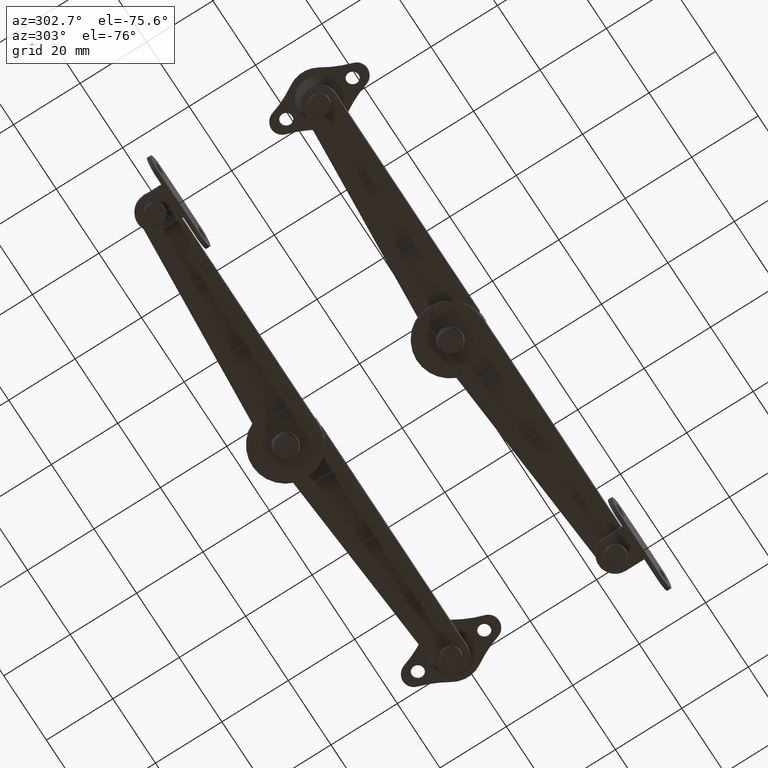
[diagram: clean part render]
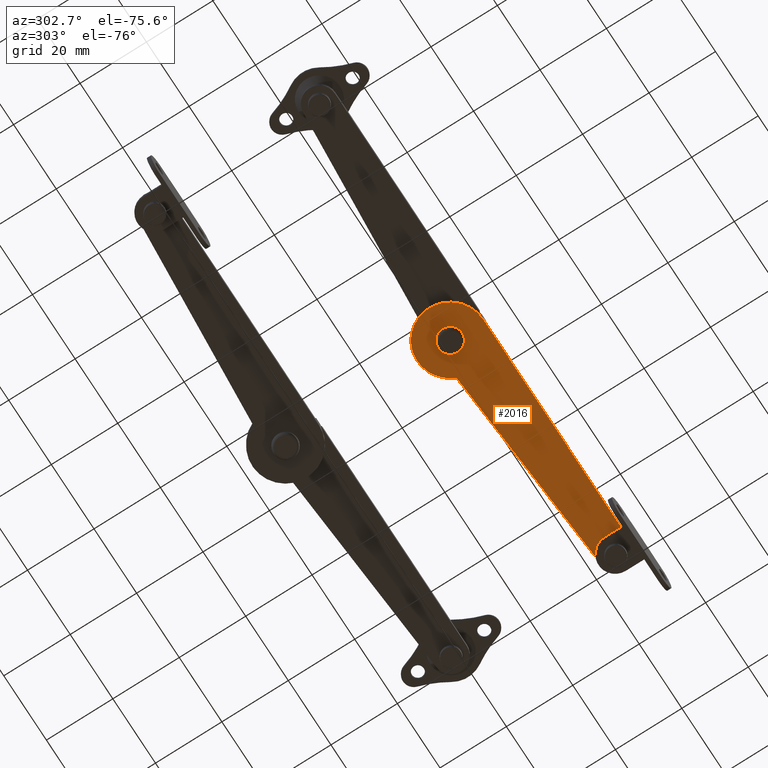
[diagram: same view with one face highlighted and labeled with its STEP entity id]
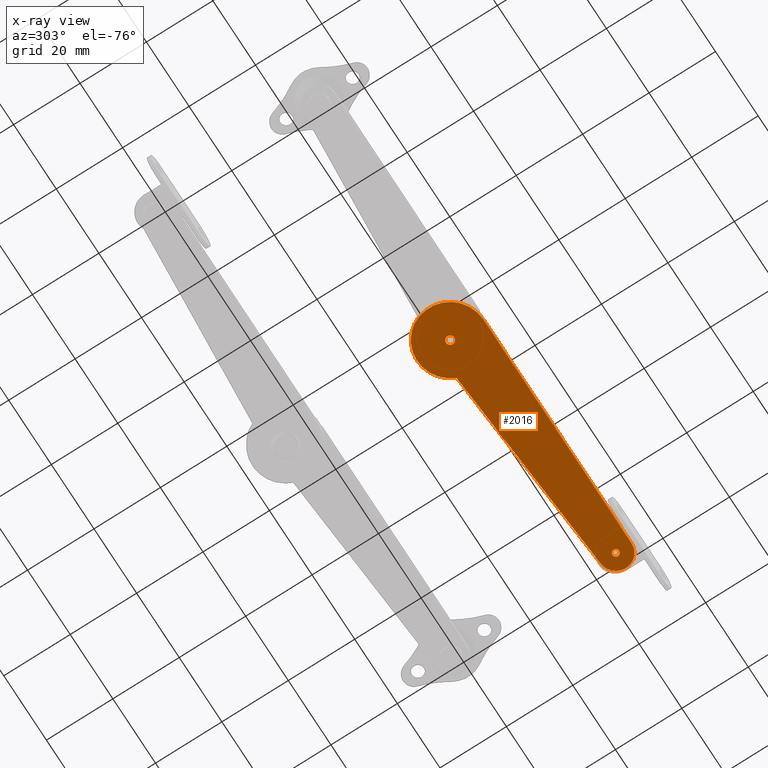
[diagram: x-ray of the same camera — body ghosted, the highlighted face saturated]
A machine part, auxiliary view. The second image highlights one B-rep face of the part: STEP entity #2016.
The next image is the same camera in x-ray: the body ghosted, the highlighted face saturated — about 0% of this face is hidden behind the body in this view.
In plain terms, the highlighted planar face has unit normal (-0, 0, 1).
Its self-contained STEP definition (entity closure, byte-faithful):
#187=FACE_BOUND('',#493,.T.);
#188=FACE_BOUND('',#494,.T.);
#282=PLANE('',#2176);
#351=FACE_OUTER_BOUND('',#492,.T.);
#492=EDGE_LOOP('',(#1529,#1530,#1531,#1532));
#493=EDGE_LOOP('',(#1533));
#494=EDGE_LOOP('',(#1534));
#712=CIRCLE('',#2167,1.25);
#713=CIRCLE('',#2169,1.);
#714=CIRCLE('',#2172,10.);
#715=CIRCLE('',#2175,4.75);
#858=LINE('',#3230,#957);
#861=LINE('',#3238,#960);
#957=VECTOR('',#2512,69.5);
#960=VECTOR('',#2521,60.8546954375881);
#1060=VERTEX_POINT('',#3221);
#1061=VERTEX_POINT('',#3224);
#1062=VERTEX_POINT('',#3227);
#1063=VERTEX_POINT('',#3229);
#1064=VERTEX_POINT('',#3233);
#1065=VERTEX_POINT('',#3237);
#1252=EDGE_CURVE('',#1060,#1060,#712,.T.);
#1253=EDGE_CURVE('',#1061,#1061,#713,.T.);
#1255=EDGE_CURVE('',#1062,#1063,#858,.T.);
#1258=EDGE_CURVE('',#1064,#1062,#714,.T.);
#1259=EDGE_CURVE('',#1065,#1064,#861,.T.);
#1261=EDGE_CURVE('',#1063,#1065,#715,.T.);
#1529=ORIENTED_EDGE('',*,*,#1261,.F.);
#1530=ORIENTED_EDGE('',*,*,#1255,.F.);
#1531=ORIENTED_EDGE('',*,*,#1258,.F.);
#1532=ORIENTED_EDGE('',*,*,#1259,.F.);
#1533=ORIENTED_EDGE('',*,*,#1252,.T.);
#1534=ORIENTED_EDGE('',*,*,#1253,.T.);
#2016=ADVANCED_FACE('',(#351,#187,#188),#282,.F.);
#2167=AXIS2_PLACEMENT_3D('',#3222,#2503,#2504);
#2169=AXIS2_PLACEMENT_3D('',#3225,#2507,#2508);
#2172=AXIS2_PLACEMENT_3D('',#3235,#2517,#2518);
#2175=AXIS2_PLACEMENT_3D('',#3241,#2525,#2526);
#2176=AXIS2_PLACEMENT_3D('',#3242,#2527,#2528);
#2503=DIRECTION('center_axis',(0.,0.,1.));
#2504=DIRECTION('ref_axis',(-1.,0.,0.));
#2507=DIRECTION('center_axis',(0.,0.,1.));
#2508=DIRECTION('ref_axis',(-1.,0.,0.));
#2512=DIRECTION('',(1.,0.,0.));
#2517=DIRECTION('center_axis',(0.,0.,1.));
#2518=DIRECTION('ref_axis',(0.916515138991578,0.39999999999906,0.));
#2521=DIRECTION('',(-0.997246238420361,0.0741615800562579,0.));
#2525=DIRECTION('center_axis',(0.,0.,1.));
#2526=DIRECTION('ref_axis',(0.,-1.,0.));
#2527=DIRECTION('center_axis',(0.,0.,1.));
#2528=DIRECTION('ref_axis',(1.,0.,0.));
#3221=CARTESIAN_POINT('',(1.25,1.53080849893419E-16,0.));
#3222=CARTESIAN_POINT('Origin',(0.,0.,0.));
#3224=CARTESIAN_POINT('',(70.5,-5.25,0.));
#3225=CARTESIAN_POINT('Origin',(69.5,-5.25,0.));
#3227=CARTESIAN_POINT('',(-1.83697019872103E-15,-10.,0.));
#3229=CARTESIAN_POINT('',(69.5,-10.,0.));
#3230=CARTESIAN_POINT('',(-1.83697019872103E-15,-10.,0.));
#3233=CARTESIAN_POINT('',(9.16515138991578,3.9999999999906,0.));
#3235=CARTESIAN_POINT('Origin',(0.,0.,0.));
#3237=CARTESIAN_POINT('',(69.8522675052672,-0.513080367503286,0.));
#3238=CARTESIAN_POINT('',(69.8522675052672,-0.513080367503286,0.));
#3241=CARTESIAN_POINT('Origin',(69.5,-5.25,0.));
#3242=CARTESIAN_POINT('Origin',(31.7374279601123,-3.33520886226292,0.));